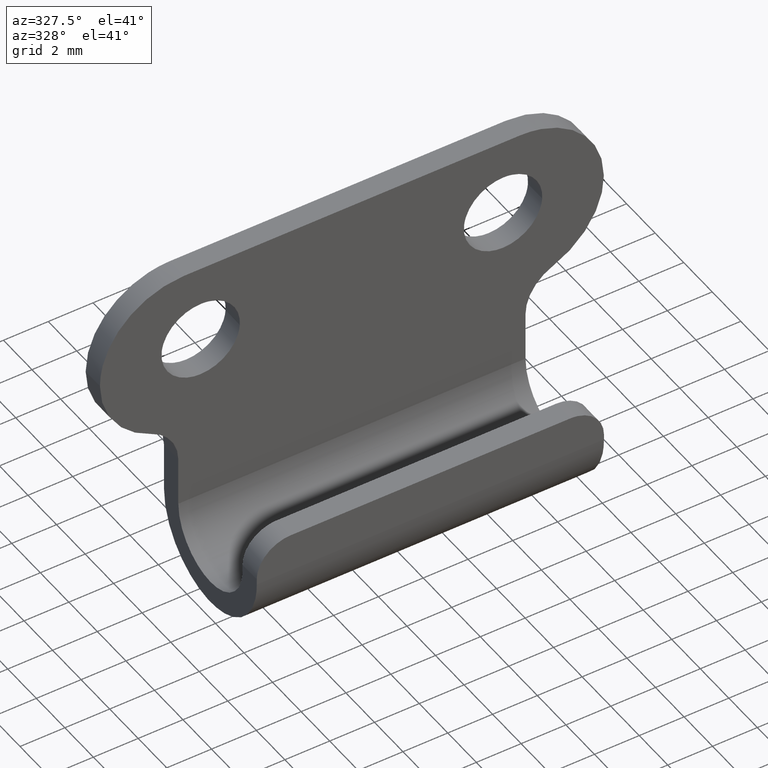
[diagram: clean part render]
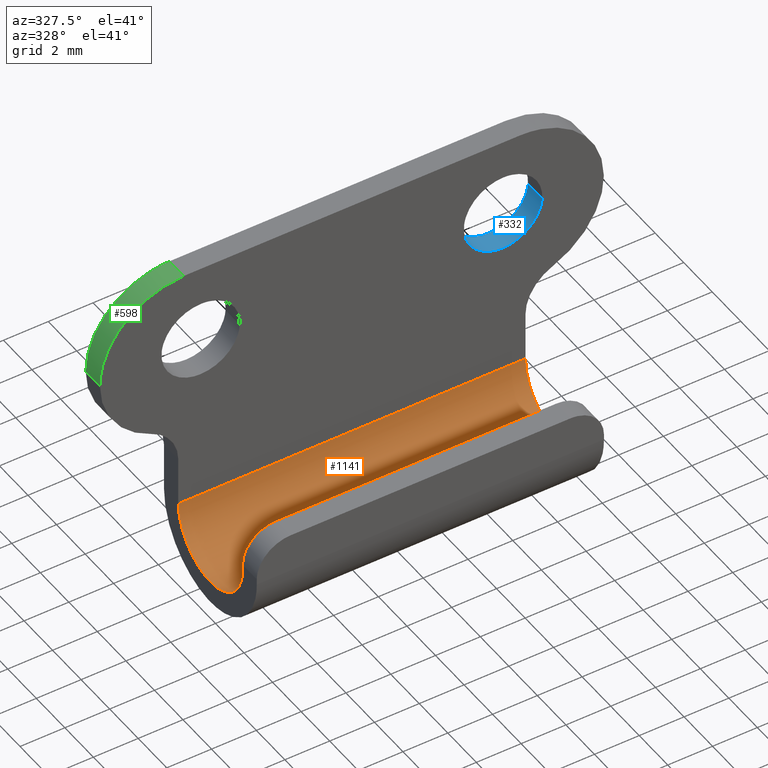
[diagram: same view with three faces highlighted in distinct colors, each labeled with its STEP entity id]
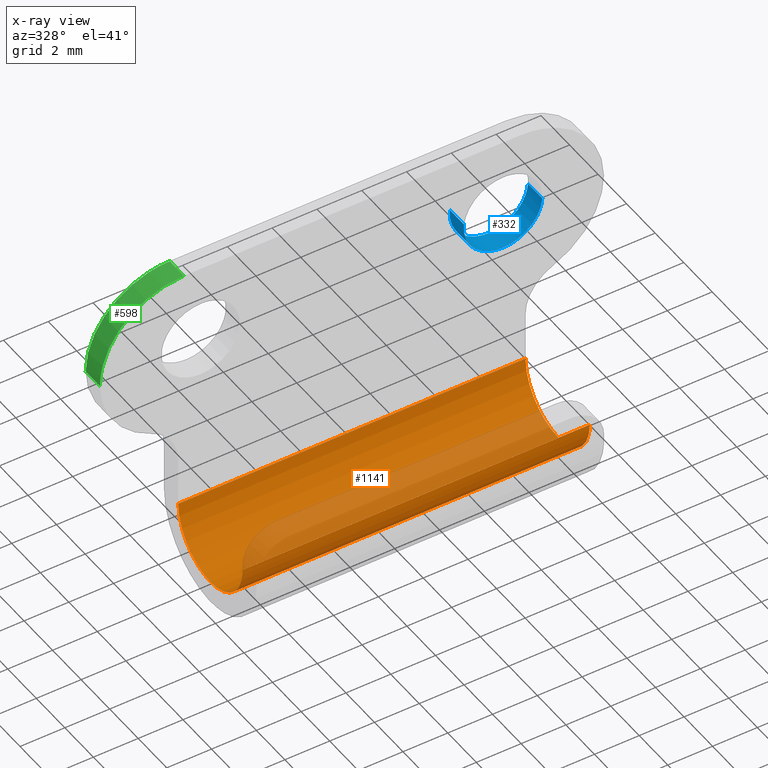
[diagram: x-ray of the same camera — body ghosted, the three highlighted faces saturated]
A machine part, auxiliary view with three faces highlighted in distinct colors.
The next image is the same camera in x-ray (body ghosted, the three faces saturated) — at least one of them is partly hidden behind the body in this view.
Their STEP definitions:

[orange] entity #1141 — the highlighted face is a freeform B-spline surface patch.
#779=CARTESIAN_POINT('',(-7.750000000000000,-5.500000000000000,-11.250000000000000));
#780=VERTEX_POINT('',#779);
#786=CARTESIAN_POINT('',(-7.750000000000000,-1.000000000000014,-11.250000000000000));
#787=VERTEX_POINT('',#786);
#788=CARTESIAN_POINT('',(-7.750000000000000,-1.0,-11.250000000000000));
#789=CARTESIAN_POINT('',(-7.750000000000001,-1.0,-13.500000000000000));
#790=CARTESIAN_POINT('',(-7.750000000000000,-3.250000000000000,-13.500000000000000));
#791=CARTESIAN_POINT('',(-7.750000000000001,-5.500000000000000,-13.500000000000000));
#792=CARTESIAN_POINT('',(-7.750000000000000,-5.500000000000000,-11.250000000000000));
#800=(BOUNDED_CURVE()B_SPLINE_CURVE(2,(#788,#789,#790,#791,#792),.UNSPECIFIED.,.F.,.U.)B_SPLINE_CURVE_WITH_KNOTS((3,2,3),(0.0,0.500000000000000,1.0),.UNSPECIFIED.)CURVE()GEOMETRIC_REPRESENTATION_ITEM()RATIONAL_B_SPLINE_CURVE((1.0,0.707106781186547,1.0,0.707106781186547,1.0))REPRESENTATION_ITEM(''));
#801=EDGE_CURVE('',#787,#780,#800,.T.);
#945=CARTESIAN_POINT('',(7.750000000000000,-5.500000000000000,-11.250000000000000));
#946=VERTEX_POINT('',#945);
#983=CARTESIAN_POINT('',(7.750000000000000,-1.000000000000014,-11.250000000000000));
#984=VERTEX_POINT('',#983);
#990=CARTESIAN_POINT('',(7.750000000000000,-1.0,-11.250000000000000));
#991=CARTESIAN_POINT('',(7.750000000000001,-1.0,-13.500000000000000));
#992=CARTESIAN_POINT('',(7.750000000000000,-3.250000000000000,-13.500000000000000));
#993=CARTESIAN_POINT('',(7.750000000000001,-5.500000000000000,-13.500000000000000));
#994=CARTESIAN_POINT('',(7.750000000000000,-5.500000000000000,-11.250000000000000));
#1002=(BOUNDED_CURVE()B_SPLINE_CURVE(2,(#990,#991,#992,#993,#994),.UNSPECIFIED.,.F.,.U.)B_SPLINE_CURVE_WITH_KNOTS((3,2,3),(0.0,0.500000000000000,1.0),.UNSPECIFIED.)CURVE()GEOMETRIC_REPRESENTATION_ITEM()RATIONAL_B_SPLINE_CURVE((1.0,0.707106781186547,1.0,0.707106781186547,1.0))REPRESENTATION_ITEM(''));
#1003=EDGE_CURVE('',#984,#946,#1002,.T.);
#1040=CARTESIAN_POINT('',(7.750000000000000,-5.500000000000000,-11.250000000000000));
#1041=CARTESIAN_POINT('',(-7.750000000000000,-5.500000000000000,-11.250000000000000));
#1042=QUASI_UNIFORM_CURVE('',1,(#1040,#1041),.UNSPECIFIED.,.F.,.U.);
#1043=EDGE_CURVE('',#946,#780,#1042,.T.);
#1113=CARTESIAN_POINT('',(8.137500000000001,-5.499228981195003,-11.191101866307280));
#1114=CARTESIAN_POINT('',(-8.147187500000001,-5.499228981195003,-11.191101866307280));
#1115=CARTESIAN_POINT('',(8.137500000000001,-5.561294663896531,-13.561294663896522));
#1116=CARTESIAN_POINT('',(-8.147187500000001,-5.561294663896531,-13.561294663896522));
#1117=CARTESIAN_POINT('',(8.137500000000001,-3.191101866307289,-13.499228981195010));
#1118=CARTESIAN_POINT('',(-8.147187500000001,-3.191101866307289,-13.499228981195010));
#1119=CARTESIAN_POINT('',(8.137500000000001,-0.820909068718044,-13.437163298493484));
#1120=CARTESIAN_POINT('',(-8.147187500000001,-0.820909068718044,-13.437163298493484));
#1121=CARTESIAN_POINT('',(8.137500000000001,-1.006935999100460,-11.073467034612349));
#1122=CARTESIAN_POINT('',(-8.147187500000001,-1.006935999100460,-11.073467034612349));
#1130=(BOUNDED_SURFACE()B_SPLINE_SURFACE(1,2,((#1113,#1115,#1117,#1119,#1121),(#1114,#1116,#1118,#1120,#1122)),.UNSPECIFIED.,.F.,.F.,.U.)B_SPLINE_SURFACE_WITH_KNOTS((2,2),(3,2,3),(0.0,16.284687500000000),(0.0,3.866705153701526,7.733410307403053),.UNSPECIFIED.)GEOMETRIC_REPRESENTATION_ITEM()RATIONAL_B_SPLINE_SURFACE(((1.0,0.688354575693754,1.0,0.688354575693754,1.0),(1.0,0.688354575693754,1.0,0.688354575693754,1.0)))REPRESENTATION_ITEM('')SURFACE());
#1131=CARTESIAN_POINT('',(7.750000000000000,-1.000000000000014,-11.250000000000000));
#1132=CARTESIAN_POINT('',(-7.750000000000000,-1.000000000000014,-11.250000000000000));
#1133=QUASI_UNIFORM_CURVE('',1,(#1131,#1132),.UNSPECIFIED.,.F.,.U.);
#1134=EDGE_CURVE('',#984,#787,#1133,.T.);
#1135=ORIENTED_EDGE('',*,*,#1134,.T.);
#1136=ORIENTED_EDGE('',*,*,#801,.T.);
#1137=ORIENTED_EDGE('',*,*,#1043,.F.);
#1138=ORIENTED_EDGE('',*,*,#1003,.F.);
#1139=EDGE_LOOP('',(#1135,#1136,#1137,#1138));
#1140=FACE_OUTER_BOUND('',#1139,.T.);
#1141=ADVANCED_FACE('',(#1140),#1130,.F.);

[blue] entity #332 — the highlighted face is a freeform B-spline surface patch.
#230=CARTESIAN_POINT('',(5.012233328863585,0.025000000000000,-3.293440089350673));
#231=CARTESIAN_POINT('',(5.006321672964941,0.025000000000000,-3.343174224883540));
#232=CARTESIAN_POINT('',(5.003264102761733,0.025000000000000,-3.393165055814000));
#233=CARTESIAN_POINT('',(4.896429158575733,0.025000000000000,-5.139900953052267));
#234=CARTESIAN_POINT('',(6.643165055814000,0.025000000000000,-5.246735897238267));
#235=CARTESIAN_POINT('',(8.389900953052269,0.025000000000000,-5.353570841424266));
#236=CARTESIAN_POINT('',(8.496735897238267,0.025000000000000,-3.606834944186000));
#237=CARTESIAN_POINT('',(5.012233328863585,-1.025625000000000,-3.293440089350673));
#238=CARTESIAN_POINT('',(5.006321672964941,-1.025625000000000,-3.343174224883540));
#239=CARTESIAN_POINT('',(5.003264102761733,-1.025625000000000,-3.393165055814000));
#240=CARTESIAN_POINT('',(4.896429158575733,-1.025625000000000,-5.139900953052267));
#241=CARTESIAN_POINT('',(6.643165055814000,-1.025625000000000,-5.246735897238267));
#242=CARTESIAN_POINT('',(8.389900953052269,-1.025625000000000,-5.353570841424266));
#243=CARTESIAN_POINT('',(8.496735897238267,-1.025625000000000,-3.606834944186000));
#251=(BOUNDED_SURFACE()B_SPLINE_SURFACE(2,1,((#230,#237),(#231,#238),(#232,#239),(#233,#240),(#234,#241),(#235,#242),(#236,#243)),.UNSPECIFIED.,.F.,.F.,.U.)B_SPLINE_SURFACE_WITH_KNOTS((3,2,2,3),(2,2),(3.078760800517997,3.141592653589793,4.712388980384690,6.283185307179586),(0.0,1.0),.UNSPECIFIED.)GEOMETRIC_REPRESENTATION_ITEM()RATIONAL_B_SPLINE_SURFACE(((0.977505800795127,0.977505800795127),(0.988284271247462,0.988284271247462),(1.0,1.0),(0.707106781186548,0.707106781186548),(1.0,1.0),(0.707106781186548,0.707106781186548),(1.0,1.0)))REPRESENTATION_ITEM('')SURFACE());
#252=CARTESIAN_POINT('',(5.012233328867577,3.549285E-017,-3.293440089317080));
#253=VERTEX_POINT('',#252);
#254=CARTESIAN_POINT('',(6.750000000000000,0.0,-5.250000000000000));
#255=VERTEX_POINT('',#254);
#256=CARTESIAN_POINT('',(5.012233328867577,3.549285E-017,-3.293440089317080));
#257=CARTESIAN_POINT('',(5.0,0.0,-3.396357790575210));
#258=CARTESIAN_POINT('',(5.0,0.0,-3.500000000000000));
#259=CARTESIAN_POINT('',(4.999999999999999,0.0,-5.249999999999999));
#260=CARTESIAN_POINT('',(6.750000000000000,0.0,-5.250000000000000));
#268=(BOUNDED_CURVE()B_SPLINE_CURVE(2,(#256,#257,#258,#259,#260),.UNSPECIFIED.,.F.,.U.)B_SPLINE_CURVE_WITH_KNOTS((3,2,3),(0.229562473509110,0.250000000000000,0.500000000000000),.UNSPECIFIED.)CURVE()GEOMETRIC_REPRESENTATION_ITEM()RATIONAL_B_SPLINE_CURVE((0.956026754175079,0.976055948325992,1.0,0.707106781186547,1.0))REPRESENTATION_ITEM(''));
#269=EDGE_CURVE('',#253,#255,#268,.T.);
#270=ORIENTED_EDGE('',*,*,#269,.F.);
#271=CARTESIAN_POINT('',(5.012233328867577,-1.0,-3.293440089317081));
#272=VERTEX_POINT('',#271);
#273=CARTESIAN_POINT('',(5.012233328867577,3.549285E-017,-3.293440089317080));
#274=CARTESIAN_POINT('',(5.012233328867577,-1.0,-3.293440089317081));
#275=QUASI_UNIFORM_CURVE('',1,(#273,#274),.UNSPECIFIED.,.F.,.U.);
#276=EDGE_CURVE('',#253,#272,#275,.T.);
#277=ORIENTED_EDGE('',*,*,#276,.T.);
#278=CARTESIAN_POINT('',(6.750000000000000,-1.0,-5.250000000000000));
#279=VERTEX_POINT('',#278);
#280=CARTESIAN_POINT('',(5.012233328867577,-1.0,-3.293440089317080));
#281=CARTESIAN_POINT('',(5.0,-1.0,-3.396357790575210));
#282=CARTESIAN_POINT('',(5.0,-1.0,-3.500000000000000));
#283=CARTESIAN_POINT('',(4.999999999999999,-1.0,-5.249999999999999));
#284=CARTESIAN_POINT('',(6.750000000000000,-1.0,-5.250000000000000));
#292=(BOUNDED_CURVE()B_SPLINE_CURVE(2,(#280,#281,#282,#283,#284),.UNSPECIFIED.,.F.,.U.)B_SPLINE_CURVE_WITH_KNOTS((3,2,3),(0.229562473509110,0.250000000000000,0.500000000000000),.UNSPECIFIED.)CURVE()GEOMETRIC_REPRESENTATION_ITEM()RATIONAL_B_SPLINE_CURVE((0.956026754175079,0.976055948325993,1.0,0.707106781186547,1.0))REPRESENTATION_ITEM(''));
#293=EDGE_CURVE('',#272,#279,#292,.T.);
#294=ORIENTED_EDGE('',*,*,#293,.T.);
#295=CARTESIAN_POINT('',(8.496735897235855,-1.0,-3.606834944225449));
#296=VERTEX_POINT('',#295);
#297=CARTESIAN_POINT('',(6.750000000000000,-1.0,-5.250000000000000));
#298=CARTESIAN_POINT('',(8.396235617010479,-1.0,-5.250000000000000));
#299=CARTESIAN_POINT('',(8.496735897235855,-1.0,-3.606834944225449));
#307=(BOUNDED_CURVE()B_SPLINE_CURVE(2,(#297,#298,#299),.UNSPECIFIED.,.F.,.U.)B_SPLINE_CURVE_WITH_KNOTS((3,3),(0.500000000000000,0.739332962234176),.UNSPECIFIED.)CURVE()GEOMETRIC_REPRESENTATION_ITEM()RATIONAL_B_SPLINE_CURVE((1.0,0.719603993292295,0.976072041656500))REPRESENTATION_ITEM(''));
#308=EDGE_CURVE('',#279,#296,#307,.T.);
#309=ORIENTED_EDGE('',*,*,#308,.T.);
#310=CARTESIAN_POINT('',(8.496735897235855,3.469447E-017,-3.606834944225448));
#311=VERTEX_POINT('',#310);
#312=CARTESIAN_POINT('',(8.496735897235855,3.469447E-017,-3.606834944225448));
#313=CARTESIAN_POINT('',(8.496735897235855,-1.0,-3.606834944225449));
#314=QUASI_UNIFORM_CURVE('',1,(#312,#313),.UNSPECIFIED.,.F.,.U.);
#315=EDGE_CURVE('',#311,#296,#314,.T.);
#316=ORIENTED_EDGE('',*,*,#315,.F.);
#317=CARTESIAN_POINT('',(6.750000000000000,0.0,-5.250000000000000));
#318=CARTESIAN_POINT('',(8.396235617010479,0.0,-5.250000000000000));
#319=CARTESIAN_POINT('',(8.496735897235855,3.469447E-017,-3.606834944225449));
#327=(BOUNDED_CURVE()B_SPLINE_CURVE(2,(#317,#318,#319),.UNSPECIFIED.,.F.,.U.)B_SPLINE_CURVE_WITH_KNOTS((3,3),(0.500000000000000,0.739332962234176),.UNSPECIFIED.)CURVE()GEOMETRIC_REPRESENTATION_ITEM()RATIONAL_B_SPLINE_CURVE((1.0,0.719603993292295,0.976072041656500))REPRESENTATION_ITEM(''));
#328=EDGE_CURVE('',#255,#311,#327,.T.);
#329=ORIENTED_EDGE('',*,*,#328,.F.);
#330=EDGE_LOOP('',(#270,#277,#294,#309,#316,#329));
#331=FACE_OUTER_BOUND('',#330,.T.);
#332=ADVANCED_FACE('',(#331),#251,.F.);

[green] entity #598 — the highlighted face is a freeform B-spline surface patch.
#538=CARTESIAN_POINT('',(-7.467275491881101,-1.025000000000000,-0.000142788509359));
#539=CARTESIAN_POINT('',(-7.467275491881101,0.025625000000000,-0.000142788509359));
#540=CARTESIAN_POINT('',(-11.488505032544071,-1.025000000000000,0.034949950048298));
#541=CARTESIAN_POINT('',(-11.488505032544071,0.025625000000000,0.034949950048298));
#542=CARTESIAN_POINT('',(-11.243005494082000,-1.025000000000000,-3.978932023255712));
#543=CARTESIAN_POINT('',(-11.243005494082000,0.025625000000000,-3.978932023255712));
#551=(BOUNDED_SURFACE()B_SPLINE_SURFACE(1,2,((#538,#540,#542),(#539,#541,#543)),.UNSPECIFIED.,.F.,.F.,.U.)B_SPLINE_SURFACE_WITH_KNOTS((2,2),(3,3),(0.0,1.0),(0.0,6.522185624413996),.UNSPECIFIED.)GEOMETRIC_REPRESENTATION_ITEM()RATIONAL_B_SPLINE_SURFACE(((1.0,0.681998360062499,1.0),(1.0,0.681998360062499,1.0)))REPRESENTATION_ITEM('')SURFACE());
#552=CARTESIAN_POINT('',(-7.500000000000000,-1.0,-6.123032E-017));
#553=VERTEX_POINT('',#552);
#554=CARTESIAN_POINT('',(-11.250000000000000,-1.0,-3.750000000000000));
#555=VERTEX_POINT('',#554);
#556=CARTESIAN_POINT('',(-7.500000000000000,-1.0,0.0));
#557=CARTESIAN_POINT('',(-11.250000000000000,-1.0,0.0));
#558=CARTESIAN_POINT('',(-11.250000000000000,-1.0,-3.750000000000000));
#566=(BOUNDED_CURVE()B_SPLINE_CURVE(2,(#556,#557,#558),.UNSPECIFIED.,.F.,.U.)CURVE()GEOMETRIC_REPRESENTATION_ITEM()QUASI_UNIFORM_CURVE()RATIONAL_B_SPLINE_CURVE((1.0,0.707106781186547,1.0))REPRESENTATION_ITEM(''));
#567=EDGE_CURVE('',#553,#555,#566,.T.);
#568=ORIENTED_EDGE('',*,*,#567,.F.);
#569=CARTESIAN_POINT('',(-7.500000000000000,0.0,0.0));
#570=VERTEX_POINT('',#569);
#571=CARTESIAN_POINT('',(-7.500000000000000,0.0,0.0));
#572=CARTESIAN_POINT('',(-7.500000000000000,-1.0,-6.123032E-017));
#573=QUASI_UNIFORM_CURVE('',1,(#571,#572),.UNSPECIFIED.,.F.,.U.);
#574=EDGE_CURVE('',#570,#553,#573,.T.);
#575=ORIENTED_EDGE('',*,*,#574,.F.);
#576=CARTESIAN_POINT('',(-11.250000000000000,0.0,-3.750000000000000));
#577=VERTEX_POINT('',#576);
#578=CARTESIAN_POINT('',(-11.250000000000000,0.0,-3.750000000000000));
#579=CARTESIAN_POINT('',(-11.250000000000000,0.0,0.0));
#580=CARTESIAN_POINT('',(-7.500000000000000,0.0,0.0));
#588=(BOUNDED_CURVE()B_SPLINE_CURVE(2,(#578,#579,#580),.UNSPECIFIED.,.F.,.U.)CURVE()GEOMETRIC_REPRESENTATION_ITEM()QUASI_UNIFORM_CURVE()RATIONAL_B_SPLINE_CURVE((1.0,0.707106781186547,1.0))REPRESENTATION_ITEM(''));
#589=EDGE_CURVE('',#577,#570,#588,.T.);
#590=ORIENTED_EDGE('',*,*,#589,.F.);
#591=CARTESIAN_POINT('',(-11.250000000000000,0.0,-3.750000000000000));
#592=CARTESIAN_POINT('',(-11.250000000000000,-1.0,-3.750000000000000));
#593=QUASI_UNIFORM_CURVE('',1,(#591,#592),.UNSPECIFIED.,.F.,.U.);
#594=EDGE_CURVE('',#577,#555,#593,.T.);
#595=ORIENTED_EDGE('',*,*,#594,.T.);
#596=EDGE_LOOP('',(#568,#575,#590,#595));
#597=FACE_OUTER_BOUND('',#596,.T.);
#598=ADVANCED_FACE('',(#597),#551,.T.);